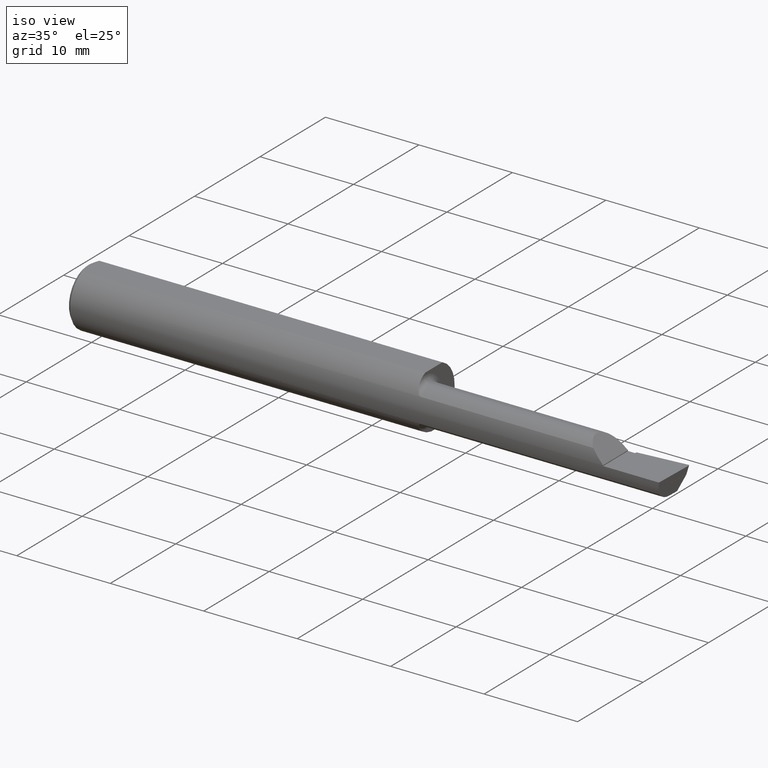
[diagram: clean part render]
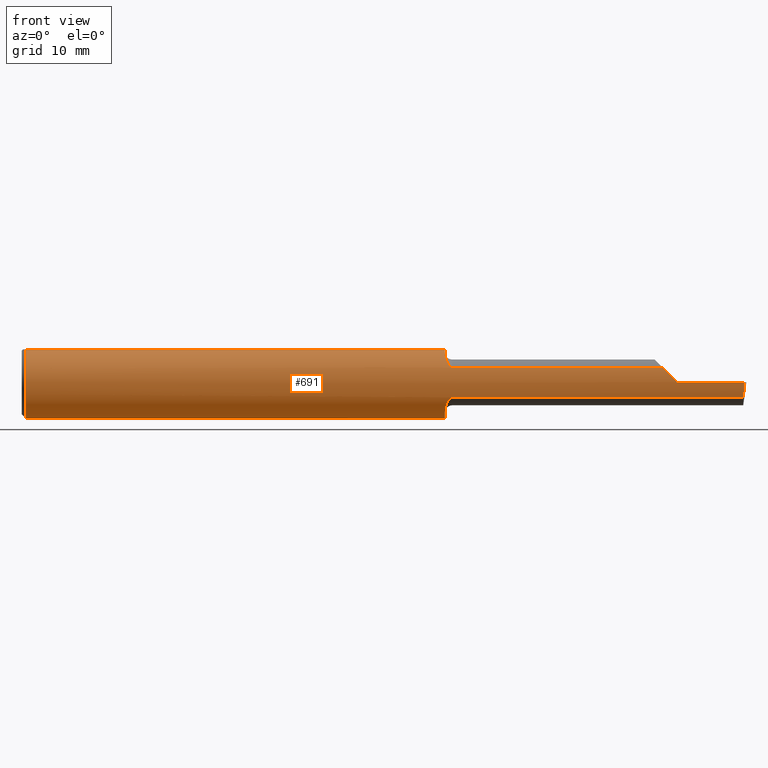
[diagram: tour spotlight — one face highlighted and labeled with its STEP entity id]
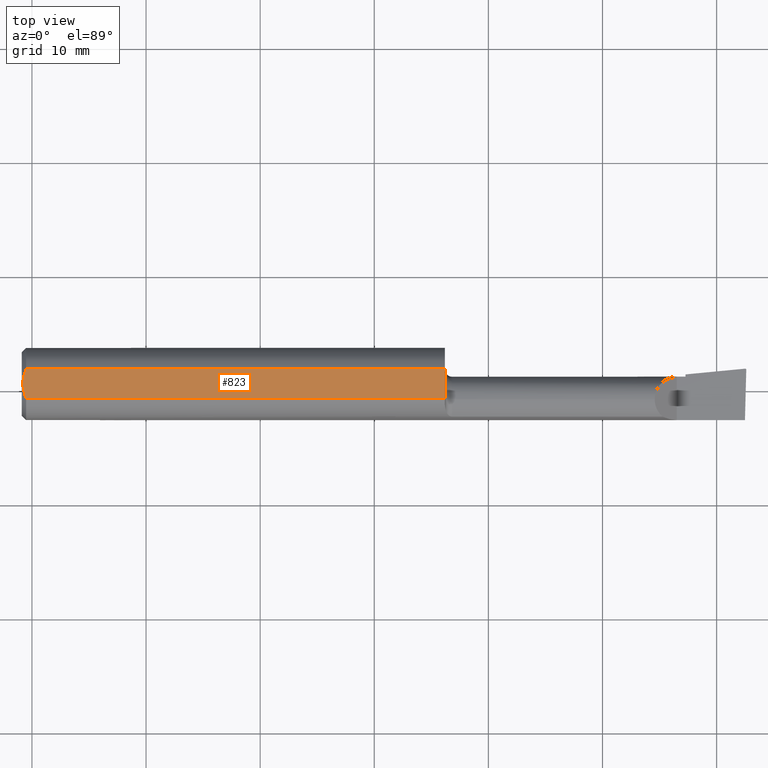
[diagram: tour spotlight — one face highlighted and labeled with its STEP entity id]
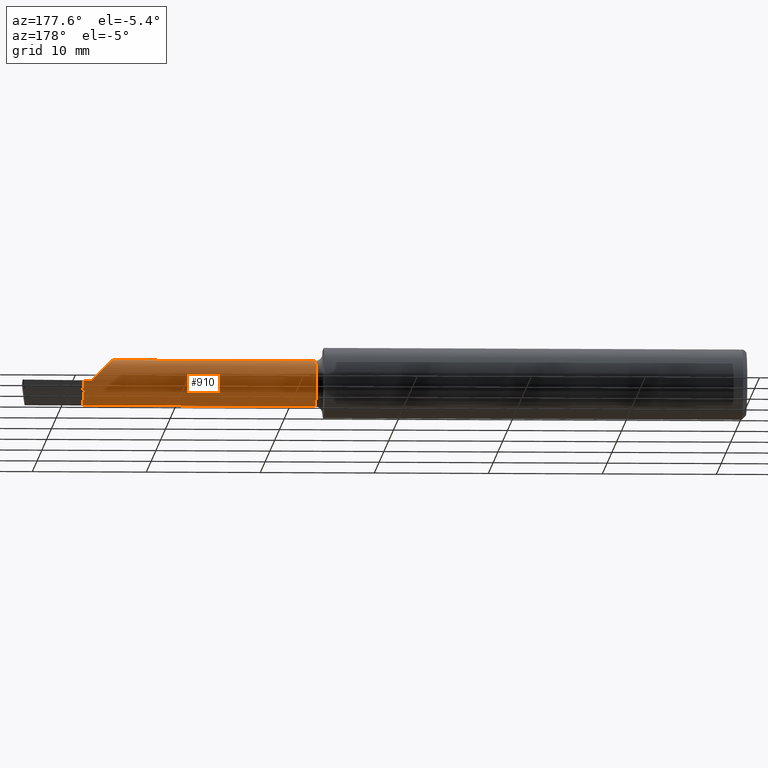
[diagram: tour spotlight — one face highlighted and labeled with its STEP entity id]
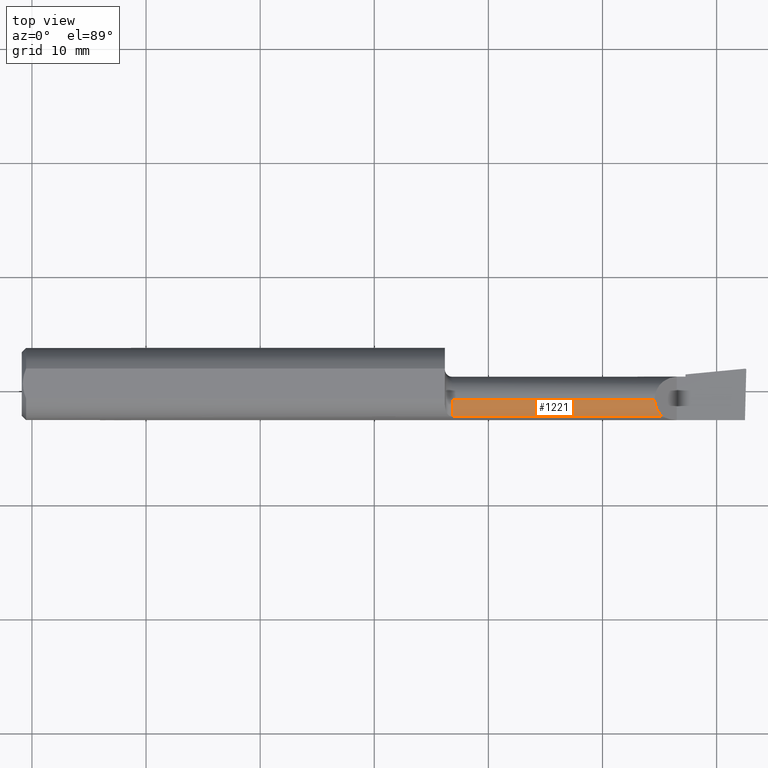
[diagram: tour spotlight — one face highlighted and labeled with its STEP entity id]
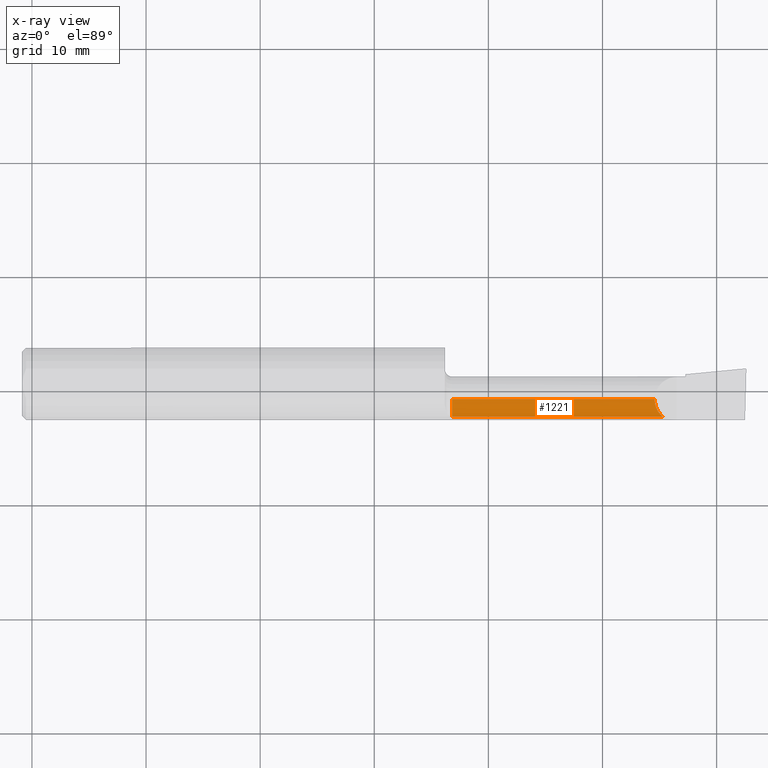
[diagram: x-ray of the same camera — body ghosted, this tour face saturated]
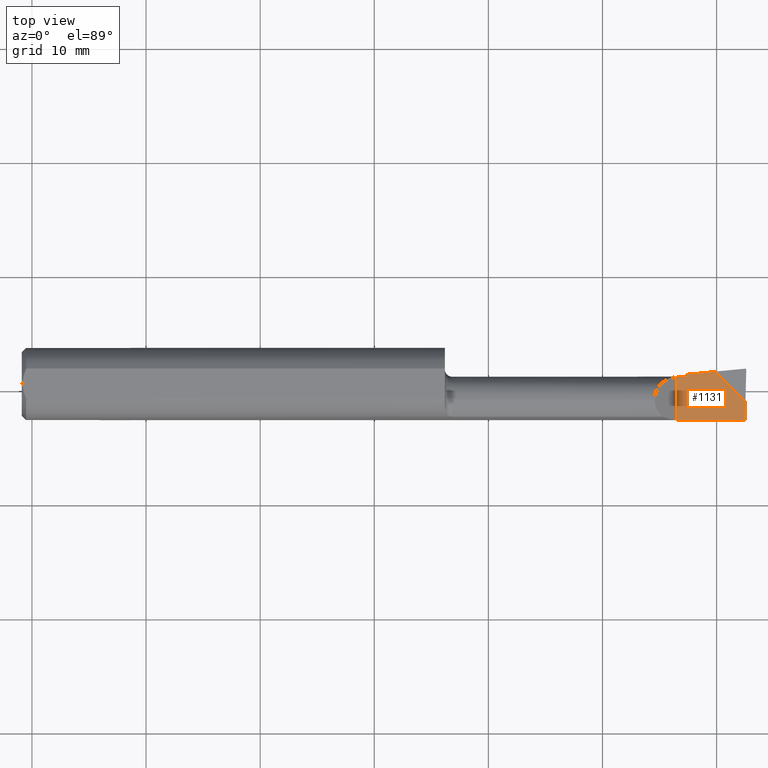
[diagram: tour spotlight — one face highlighted and labeled with its STEP entity id]
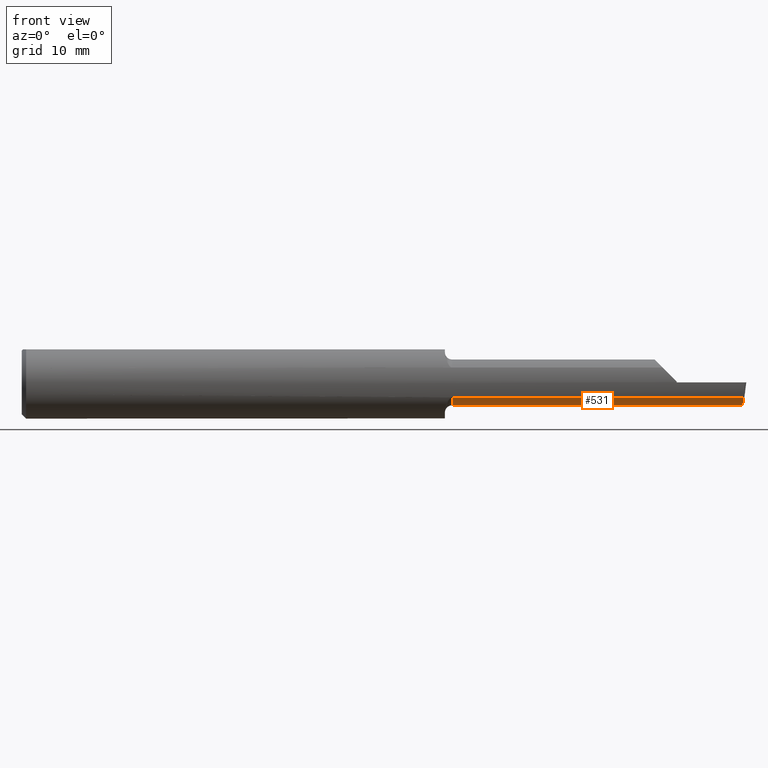
[diagram: tour spotlight — one face highlighted and labeled with its STEP entity id]
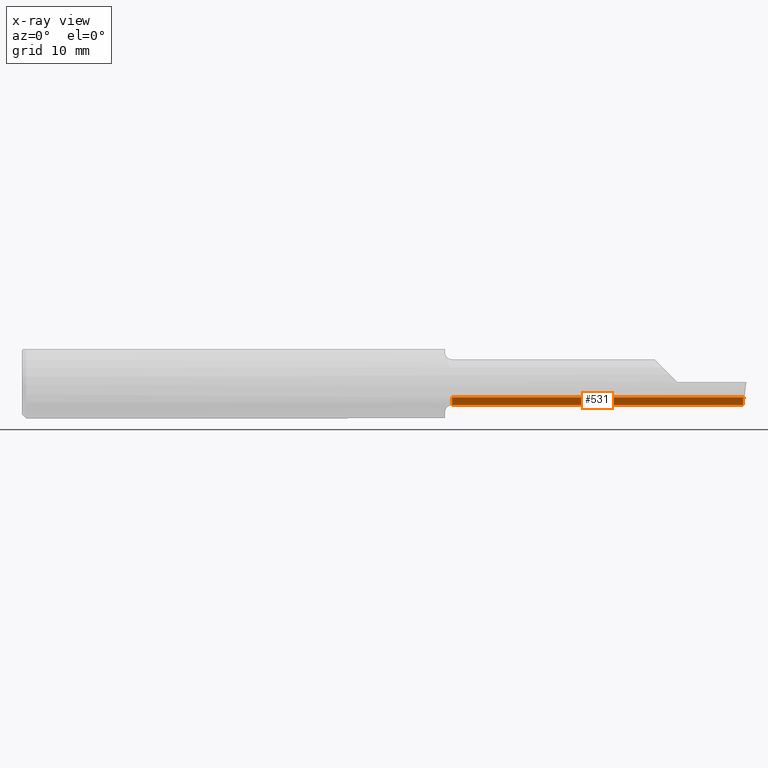
[diagram: x-ray of the same camera — body ghosted, this tour face saturated]
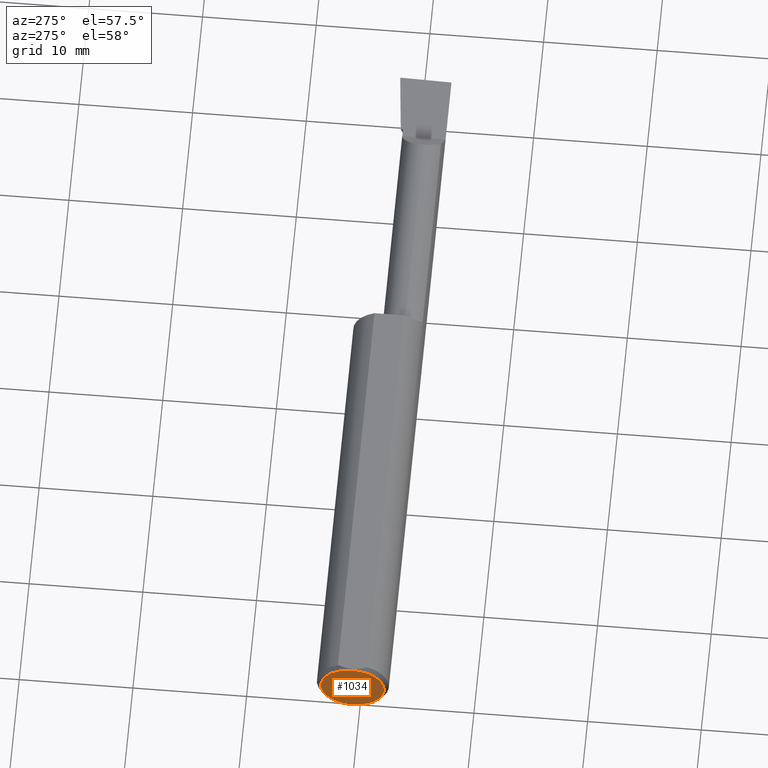
[diagram: tour spotlight — one face highlighted and labeled with its STEP entity id]
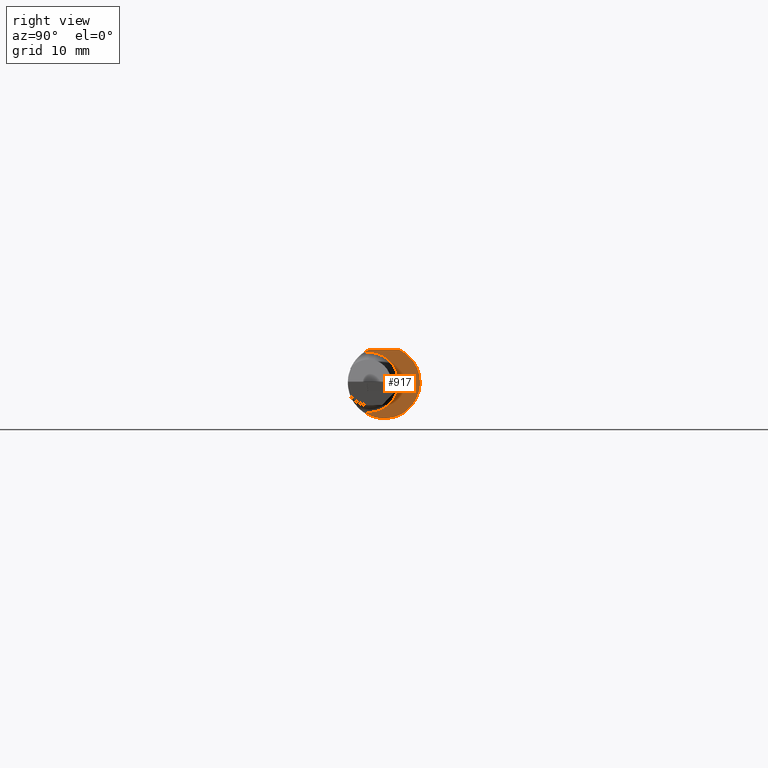
[diagram: tour spotlight — one face highlighted and labeled with its STEP entity id]
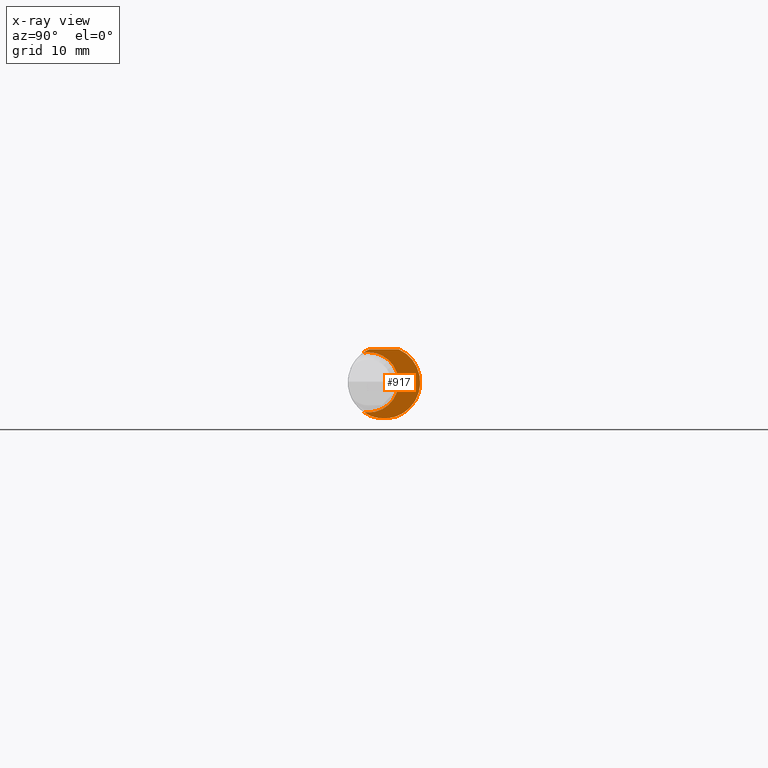
[diagram: x-ray of the same camera — body ghosted, this tour face saturated]
A machine part: a face-by-face anatomy tour. The part has 38 B-rep faces; the first image is the clean iso view, then the 8 largest visible faces are spotlighted one at a time (largest first), each with its STEP entity span.

Face 1 — front view, entity #691. In plain terms, the highlighted cylindrical surface (edge-blend (fillet) strip) has radius 3.1712 mm, axis along (-1, -0, -0).
Definition (entity closure, byte-faithful):
#13 = AXIS2_PLACEMENT_3D ( 'NONE', #1154, #131, #1037 ) ;
#15 = CARTESIAN_POINT ( 'NONE',  ( 1.468829174467128906, -0.1051947416025568738, -0.06747609159119545563 ) ) ;
#22 = CARTESIAN_POINT ( 'NONE',  ( 1.485000000000000098, -0.1137079387186629154, 0.05155605854167669838 ) ) ;
#37 = DIRECTION ( 'NONE',  ( 0.000000000000000000, 0.000000000000000000, -1.000000000000000000 ) ) ;
#39 = VERTEX_POINT ( 'NONE', #1337 ) ;
#55 = ORIENTED_EDGE ( 'NONE', *, *, #803, .F. ) ;
#66 = CARTESIAN_POINT ( 'NONE',  ( 2.260000000000000231, -0.1248174667264161375, 0.002850000000000250770 ) ) ;
#118 = CARTESIAN_POINT ( 'NONE',  ( 2.243124547623006393, -0.1244321437380891265, 0.01972545237699363518 ) ) ;
#124 = CARTESIAN_POINT ( 'NONE',  ( 2.489728331821901453, -0.1137079387186629292, -0.05155605854167671920 ) ) ;
#131 = DIRECTION ( 'NONE',  ( 1.000000000000000000, -0.000000000000000000, 0.000000000000000000 ) ) ;
#136 = EDGE_CURVE ( 'NONE', #1385, #606, #563, .T. ) ;
#148 = B_SPLINE_CURVE_WITH_KNOTS ( 'NONE', 3,
 ( #795, #342, #1140, #789, #1258, #229, #15, #394, #281, #400, #1311, #583, #590, #835 ),
 .UNSPECIFIED., .F., .F.,
 ( 4, 2, 2, 2, 2, 2, 4 ),
 ( 0.000000000000000000, 0.0004746844550168766185, 0.0009493689100337532371, 0.001424053365050629476, 0.001661395592559071878, 0.001780066706313292862, 0.001898737820067514064 ),
 .UNSPECIFIED. ) ;
#150 = ORIENTED_EDGE ( 'NONE', *, *, #881, .F. ) ;
#155 = CARTESIAN_POINT ( 'NONE',  ( 0.01499999999999970281, 0.000000000000000000, 0.000000000000000000 ) ) ;
#178 = CARTESIAN_POINT ( 'NONE',  ( 1.875000000000000000, -0.1137079387186629154, -0.05155605854167669838 ) ) ;
#205 = LINE ( 'NONE', #1329, #1212 ) ;
#210 = CARTESIAN_POINT ( 'NONE',  ( 1.485000000000000098, -0.1137079387186629154, 0.05155605854167669838 ) ) ;
#229 = CARTESIAN_POINT ( 'NONE',  ( 1.466720276352116770, -0.1018883731564565881, -0.07240726755920651181 ) ) ;
#245 = CARTESIAN_POINT ( 'NONE',  ( 1.473207090333531699, -0.1093984659698930689, 0.06022643808600478682 ) ) ;
#248 = CARTESIAN_POINT ( 'NONE',  ( 2.260000000000000231, -0.1248174667264161375, 0.002850000000000250770 ) ) ;
#258 = ORIENTED_EDGE ( 'NONE', *, *, #729, .T. ) ;
#261 = CARTESIAN_POINT ( 'NONE',  ( 0.01499999999999970281, -0.05124158467494929065, 0.1138500000000000068 ) ) ;
#273 = EDGE_CURVE ( 'NONE', #991, #39, #713, .T. ) ;
#277 = ORIENTED_EDGE ( 'NONE', *, *, #1105, .T. ) ;
#281 = CARTESIAN_POINT ( 'NONE',  ( 1.474891557169639711, -0.1106952600441790252, -0.05778930534297101185 ) ) ;
#287 = CARTESIAN_POINT ( 'NONE',  ( 0.01499999999999970281, 0.05124158467494929065, 0.1138500000000000068 ) ) ;
#290 = DIRECTION ( 'NONE',  ( 1.000000000000000000, -0.000000000000000000, -0.000000000000000000 ) ) ;
#291 = VECTOR ( 'NONE', #602, 39.37007874015748143 ) ;
#303 = VECTOR ( 'NONE', #550, 39.37007874015748143 ) ;
#306 = CARTESIAN_POINT ( 'NONE',  ( 0.01499999999999970281, 0.000000000000000000, 0.000000000000000000 ) ) ;
#313 = DIRECTION ( 'NONE',  ( -1.000000000000000000, -0.000000000000000000, -0.000000000000000000 ) ) ;
#319 = CARTESIAN_POINT ( 'NONE',  ( 1.460000000000000187, 0.05124158467494929065, 0.1138500000000000068 ) ) ;
#324 = ORIENTED_EDGE ( 'NONE', *, *, #1445, .T. ) ;
#327 = DIRECTION ( 'NONE',  ( 1.000000000000000000, 0.000000000000000000, 0.000000000000000000 ) ) ;
#342 = CARTESIAN_POINT ( 'NONE',  ( 1.460000000000000187, -0.07641892655109837340, -0.09893232956682049273 ) ) ;
#344 = ORIENTED_EDGE ( 'NONE', *, *, #363, .T. ) ;
#354 = EDGE_CURVE ( 'NONE', #880, #579, #1058, .T. ) ;
#363 = EDGE_CURVE ( 'NONE', #1129, #558, #1463, .T. ) ;
#366 = AXIS2_PLACEMENT_3D ( 'NONE', #1230, #313, #535 ) ;
#367 = ORIENTED_EDGE ( 'NONE', *, *, #1115, .T. ) ;
#394 = CARTESIAN_POINT ( 'NONE',  ( 1.473222967173717368, -0.1094132292718230787, -0.06020071664543997364 ) ) ;
#396 = CARTESIAN_POINT ( 'NONE',  ( 0.01499999999999970281, 0.000000000000000000, -0.1248500000000000026 ) ) ;
#400 = CARTESIAN_POINT ( 'NONE',  ( 1.477994774632203079, -0.1122674110454139340, -0.05463452566123337684 ) ) ;
#403 = CARTESIAN_POINT ( 'NONE',  ( 1.460000000000000187, -0.05124158467494929065, 0.1138500000000000068 ) ) ;
#424 = CIRCLE ( 'NONE', #1454, 0.1248500000000000026 ) ;
#436 = CARTESIAN_POINT ( 'NONE',  ( 1.460432183272953655, -0.08132552481649778231, 0.09493149319044985601 ) ) ;
#439 =( BOUNDED_CURVE ( )  B_SPLINE_CURVE ( 3, ( #248, #118, #1377, #686 ),
 .UNSPECIFIED., .F., .T. ) 
 B_SPLINE_CURVE_WITH_KNOTS ( ( 4, 4 ),
 ( 4.735218356241675863, 5.138073161991934867 ),
 .UNSPECIFIED. ) 
 CURVE ( )  GEOMETRIC_REPRESENTATION_ITEM ( )  RATIONAL_B_SPLINE_CURVE ( ( 1.000000000000000000, 0.9865213322208085112, 0.9865213322208085112, 1.000000000000000000 ) ) 
 REPRESENTATION_ITEM ( '' )  );
#519 = EDGE_LOOP ( 'NONE', ( #150, #344, #277, #837, #1098, #915, #258, #55, #1452, #367, #871, #764, #1356, #324 ) ) ;
#522 = CARTESIAN_POINT ( 'NONE',  ( 2.495308749928165426, -0.1248500000000000026, 0.000000000000000000 ) ) ;
#523 = DIRECTION ( 'NONE',  ( -1.000000000000000000, -0.000000000000000000, -0.000000000000000000 ) ) ;
#535 = DIRECTION ( 'NONE',  ( 0.000000000000000000, 0.000000000000000000, 1.000000000000000000 ) ) ;
#541 = DIRECTION ( 'NONE',  ( 1.000000000000000000, -0.000000000000000000, -0.000000000000000000 ) ) ;
#550 = DIRECTION ( 'NONE',  ( 1.000000000000000000, 0.000000000000000000, 0.000000000000000000 ) ) ;
#558 = VERTEX_POINT ( 'NONE', #522 ) ;
#563 = LINE ( 'NONE', #1006, #303 ) ;
#567 = AXIS2_PLACEMENT_3D ( 'NONE', #893, #327, #974 ) ;
#572 = EDGE_CURVE ( 'NONE', #1033, #880, #424, .T. ) ;
#579 = VERTEX_POINT ( 'NONE', #319 ) ;
#583 = CARTESIAN_POINT ( 'NONE',  ( 1.481841195498450281, -0.1134700705846414664, -0.05208464249868662022 ) ) ;
#584 = CARTESIAN_POINT ( 'NONE',  ( 2.500000000000000000, 0.05124158467494929065, 0.1138500000000000068 ) ) ;
#590 = CARTESIAN_POINT ( 'NONE',  ( 1.483384674804965941, -0.1137079387186629986, -0.05155605854167662899 ) ) ;
#594 = DIRECTION ( 'NONE',  ( 1.000000000000000000, 0.000000000000000000, 0.000000000000000000 ) ) ;
#602 = DIRECTION ( 'NONE',  ( -1.000000000000000000, -0.000000000000000000, -0.000000000000000000 ) ) ;
#606 = VERTEX_POINT ( 'NONE', #1133 ) ;
#609 = DIRECTION ( 'NONE',  ( 0.000000000000000000, 0.000000000000000000, -1.000000000000000000 ) ) ;
#653 = CARTESIAN_POINT ( 'NONE',  ( 1.478004996570724261, -0.1122724996918369328, 0.05462428567343535768 ) ) ;
#658 = CARTESIAN_POINT ( 'NONE',  ( 1.460000000000000187, -0.07122883008356545309, 0.1025376821706369818 ) ) ;
#659 = CARTESIAN_POINT ( 'NONE',  ( 1.485000000000000098, -0.1137079387186629154, -0.05155605854167669838 ) ) ;
#668 = B_SPLINE_CURVE_WITH_KNOTS ( 'NONE', 3,
 ( #210, #1465, #788, #898, #653, #1119, #245, #1457, #1358, #774, #883, #436, #1364, #658 ),
 .UNSPECIFIED., .F., .F.,
 ( 4, 2, 2, 2, 2, 2, 4 ),
 ( 0.000000000000000000, 0.0001204673166543596992, 0.0002409346333087193984, 0.0004818692666174396642, 0.0009637385332348904956, 0.001445607799852341273, 0.001927477066469792050 ),
 .UNSPECIFIED. ) ;
#680 = CARTESIAN_POINT ( 'NONE',  ( 2.491386376233787114, -0.1210792537318630541, -0.03529847292505416956 ) ) ;
#686 = CARTESIAN_POINT ( 'NONE',  ( 2.211293941458323697, -0.1137079387186630403, 0.05155605854167649715 ) ) ;
#691 = ADVANCED_FACE ( 'NONE', ( #874 ), #768, .T. ) ;
#713 = CIRCLE ( 'NONE', #13, 0.1248500000000000026 ) ;
#729 = EDGE_CURVE ( 'NONE', #1385, #1413, #668, .T. ) ;
#732 = CARTESIAN_POINT ( 'NONE',  ( 1.460000000000000187, 0.000000000000000000, 0.000000000000000000 ) ) ;
#747 = CIRCLE ( 'NONE', #1327, 0.1248500000000000026 ) ;
#764 = ORIENTED_EDGE ( 'NONE', *, *, #354, .T. ) ;
#768 = CYLINDRICAL_SURFACE ( 'NONE', #366, 0.1248500000000000026 ) ;
#774 = CARTESIAN_POINT ( 'NONE',  ( 1.463322063381566451, -0.09442429944196303881, 0.08190292949107198794 ) ) ;
#788 = CARTESIAN_POINT ( 'NONE',  ( 1.481851412320271288, -0.1134707676420270844, 0.05208289852772936268 ) ) ;
#789 = CARTESIAN_POINT ( 'NONE',  ( 1.462075972147772074, -0.09022855039435347113, -0.08651295921337842643 ) ) ;
#795 = CARTESIAN_POINT ( 'NONE',  ( 1.460000000000000187, -0.07122883008356545309, -0.1025376821706369679 ) ) ;
#803 = EDGE_CURVE ( 'NONE', #1161, #1413, #926, .T. ) ;
#835 = CARTESIAN_POINT ( 'NONE',  ( 1.485000000000000098, -0.1137079387186629154, -0.05155605854167669838 ) ) ;
#837 = ORIENTED_EDGE ( 'NONE', *, *, #273, .F. ) ;
#863 = VERTEX_POINT ( 'NONE', #261 ) ;
#871 = ORIENTED_EDGE ( 'NONE', *, *, #572, .T. ) ;
#874 = FACE_OUTER_BOUND ( 'NONE', #519, .T. ) ;
#880 = VERTEX_POINT ( 'NONE', #287 ) ;
#881 = EDGE_CURVE ( 'NONE', #1129, #1228, #1283, .T. ) ;
#883 = CARTESIAN_POINT ( 'NONE',  ( 1.462097932358489727, -0.09031588916230269548, 0.08642262175420212245 ) ) ;
#893 = CARTESIAN_POINT ( 'NONE',  ( 1.460000000000000187, 0.000000000000000000, 0.000000000000000000 ) ) ;
#894 = VECTOR ( 'NONE', #1392, 39.37007874015748143 ) ;
#898 = CARTESIAN_POINT ( 'NONE',  ( 1.479178174055183481, -0.1127518981013768823, 0.05362138475326223147 ) ) ;
#915 = ORIENTED_EDGE ( 'NONE', *, *, #136, .F. ) ;
#926 = CIRCLE ( 'NONE', #1382, 0.1248500000000000026 ) ;
#949 = CARTESIAN_POINT ( 'NONE',  ( 2.495308749928165426, -0.1248500000000000026, 0.000000000000000000 ) ) ;
#974 = DIRECTION ( 'NONE',  ( 0.000000000000000000, 0.000000000000000000, -1.000000000000000000 ) ) ;
#991 = VERTEX_POINT ( 'NONE', #66 ) ;
#1006 = CARTESIAN_POINT ( 'NONE',  ( 1.875000000000000000, -0.1137079387186629154, 0.05155605854167669838 ) ) ;
#1019 = DIRECTION ( 'NONE',  ( 0.000000000000000000, 0.000000000000000000, -1.000000000000000000 ) ) ;
#1031 = VECTOR ( 'NONE', #1277, 39.37007874015748143 ) ;
#1033 = VERTEX_POINT ( 'NONE', #396 ) ;
#1037 = DIRECTION ( 'NONE',  ( 0.000000000000000000, 0.000000000000000000, -1.000000000000000000 ) ) ;
#1058 = LINE ( 'NONE', #584, #1031 ) ;
#1088 = LINE ( 'NONE', #1179, #894 ) ;
#1098 = ORIENTED_EDGE ( 'NONE', *, *, #1355, .T. ) ;
#1105 = EDGE_CURVE ( 'NONE', #558, #39, #1088, .T. ) ;
#1115 = EDGE_CURVE ( 'NONE', #863, #1033, #747, .T. ) ;
#1119 = CARTESIAN_POINT ( 'NONE',  ( 1.474874683682054988, -0.1106868914269828058, 0.05780615586404040662 ) ) ;
#1127 = CARTESIAN_POINT ( 'NONE',  ( 1.460000000000000187, -0.07122883008356545309, -0.1025376821706369679 ) ) ;
#1129 = VERTEX_POINT ( 'NONE', #1287 ) ;
#1133 = CARTESIAN_POINT ( 'NONE',  ( 2.211293941458323697, -0.1137079387186630403, 0.05155605854167649715 ) ) ;
#1140 = CARTESIAN_POINT ( 'NONE',  ( 1.460423630387103877, -0.08124759910979215127, -0.09499742658102147685 ) ) ;
#1147 = CARTESIAN_POINT ( 'NONE',  ( 2.493274926315995010, -0.1248500000000000582, -0.01785064074776142665 ) ) ;
#1154 = CARTESIAN_POINT ( 'NONE',  ( 2.260000000000000231, 0.000000000000000000, 0.000000000000000000 ) ) ;
#1161 = VERTEX_POINT ( 'NONE', #403 ) ;
#1179 = CARTESIAN_POINT ( 'NONE',  ( 2.500000000000000000, -0.1248499999999999888, -3.414809992080329023E-17 ) ) ;
#1212 = VECTOR ( 'NONE', #523, 39.37007874015748143 ) ;
#1228 = VERTEX_POINT ( 'NONE', #659 ) ;
#1230 = CARTESIAN_POINT ( 'NONE',  ( 2.500000000000000000, 0.000000000000000000, 0.000000000000000000 ) ) ;
#1242 = EDGE_CURVE ( 'NONE', #1161, #863, #205, .T. ) ;
#1248 = VERTEX_POINT ( 'NONE', #1127 ) ;
#1251 = CARTESIAN_POINT ( 'NONE',  ( 1.460000000000000187, -0.07122883008356545309, 0.1025376821706369818 ) ) ;
#1258 = CARTESIAN_POINT ( 'NONE',  ( 1.463319739580840384, -0.09441777840403026145, -0.08191053717994592476 ) ) ;
#1277 = DIRECTION ( 'NONE',  ( 1.000000000000000000, 0.000000000000000000, 0.000000000000000000 ) ) ;
#1283 = LINE ( 'NONE', #178, #291 ) ;
#1287 = CARTESIAN_POINT ( 'NONE',  ( 2.489728331821901453, -0.1137079387186629292, -0.05155605854167671920 ) ) ;
#1311 = CARTESIAN_POINT ( 'NONE',  ( 1.479139446731721819, -0.1127393959439296905, -0.05364788444009101209 ) ) ;
#1314 = EDGE_CURVE ( 'NONE', #1248, #579, #1468, .T. ) ;
#1327 = AXIS2_PLACEMENT_3D ( 'NONE', #155, #290, #37 ) ;
#1329 = CARTESIAN_POINT ( 'NONE',  ( 2.500000000000000000, -0.05124158467494929065, 0.1138500000000000068 ) ) ;
#1337 = CARTESIAN_POINT ( 'NONE',  ( 2.260000000000000231, -0.1248500000000000026, -3.414809992080329023E-17 ) ) ;
#1355 = EDGE_CURVE ( 'NONE', #991, #606, #439, .T. ) ;
#1356 = ORIENTED_EDGE ( 'NONE', *, *, #1314, .F. ) ;
#1358 = CARTESIAN_POINT ( 'NONE',  ( 1.466722897001411896, -0.1018927124558844932, 0.07240105891979375929 ) ) ;
#1364 = CARTESIAN_POINT ( 'NONE',  ( 1.460000000000000187, -0.07641459200272590624, 0.09893534060435293931 ) ) ;
#1377 = CARTESIAN_POINT ( 'NONE',  ( 2.226667373999931421, -0.1206783718918706672, 0.03618262600006896118 ) ) ;
#1382 = AXIS2_PLACEMENT_3D ( 'NONE', #732, #594, #609 ) ;
#1385 = VERTEX_POINT ( 'NONE', #22 ) ;
#1392 = DIRECTION ( 'NONE',  ( -1.000000000000000000, -0.000000000000000000, -0.000000000000000000 ) ) ;
#1413 = VERTEX_POINT ( 'NONE', #1251 ) ;
#1445 = EDGE_CURVE ( 'NONE', #1248, #1228, #148, .T. ) ;
#1452 = ORIENTED_EDGE ( 'NONE', *, *, #1242, .T. ) ;
#1454 = AXIS2_PLACEMENT_3D ( 'NONE', #306, #541, #1019 ) ;
#1457 = CARTESIAN_POINT ( 'NONE',  ( 1.468851736067403824, -0.1052154413536967453, 0.06743987103427503960 ) ) ;
#1463 =( BOUNDED_CURVE ( )  B_SPLINE_CURVE ( 3, ( #124, #680, #1147, #949 ),
 .UNSPECIFIED., .F., .F. ) 
 B_SPLINE_CURVE_WITH_KNOTS ( ( 4, 4 ),
 ( 0.9177925002943650989, 1.343476681901613068 ),
 .UNSPECIFIED. ) 
 CURVE ( )  GEOMETRIC_REPRESENTATION_ITEM ( )  RATIONAL_B_SPLINE_CURVE ( ( 1.000000000000000000, 0.9849563356983244145, 0.9849563356983244145, 1.000000000000000000 ) ) 
 REPRESENTATION_ITEM ( '' )  );
#1465 = CARTESIAN_POINT ( 'NONE',  ( 1.483387820938879553, -0.1137079387186629154, 0.05155605854167671920 ) ) ;
#1468 = CIRCLE ( 'NONE', #567, 0.1248500000000000026 ) ;

Face 2 — top view, entity #823. In plain terms, the highlighted planar face has unit normal (0, 0, -1).
Definition (entity closure, byte-faithful):
#1 = CARTESIAN_POINT ( 'NONE',  ( 0.003999999999982595603, -1.276290005483319770E-15, 0.1138500000000000068 ) ) ;
#74 = CARTESIAN_POINT ( 'NONE',  ( 0.01167347033176714677, -0.04313650299737419730, 0.1138500000000000068 ) ) ;
#92 = CARTESIAN_POINT ( 'NONE',  ( 0.01167190377471842913, 0.04313268608482605931, 0.1138500000000000068 ) ) ;
#99 = CARTESIAN_POINT ( 'NONE',  ( 0.003999999999982595603, -1.276290005483319770E-15, 0.1138500000000000068 ) ) ;
#115 = ORIENTED_EDGE ( 'NONE', *, *, #1242, .F. ) ;
#196 = CARTESIAN_POINT ( 'NONE',  ( 0.008925039223039969369, -0.03485448893270375742, 0.1138499999999999790 ) ) ;
#205 = LINE ( 'NONE', #1329, #1212 ) ;
#226 = EDGE_CURVE ( 'NONE', #880, #1422, #252, .T. ) ;
#252 = B_SPLINE_CURVE_WITH_KNOTS ( 'NONE', 3,
 ( #796, #92, #537, #886, #1120, #99 ),
 .UNSPECIFIED., .F., .F.,
 ( 4, 2, 4 ),
 ( 0.001209797888329799129, 0.001876628042345587083, 0.002543458196361374820 ),
 .UNSPECIFIED. ) ;
#261 = CARTESIAN_POINT ( 'NONE',  ( 0.01499999999999970281, -0.05124158467494929065, 0.1138500000000000068 ) ) ;
#268 = EDGE_LOOP ( 'NONE', ( #496, #634, #750, #707, #115 ) ) ;
#287 = CARTESIAN_POINT ( 'NONE',  ( 0.01499999999999970281, 0.05124158467494929065, 0.1138500000000000068 ) ) ;
#319 = CARTESIAN_POINT ( 'NONE',  ( 1.460000000000000187, 0.05124158467494929065, 0.1138500000000000068 ) ) ;
#354 = EDGE_CURVE ( 'NONE', #880, #579, #1058, .T. ) ;
#403 = CARTESIAN_POINT ( 'NONE',  ( 1.460000000000000187, -0.05124158467494929065, 0.1138500000000000068 ) ) ;
#411 = LINE ( 'NONE', #864, #431 ) ;
#431 = VECTOR ( 'NONE', #513, 39.37007874015748143 ) ;
#496 = ORIENTED_EDGE ( 'NONE', *, *, #992, .F. ) ;
#513 = DIRECTION ( 'NONE',  ( 0.000000000000000000, -1.000000000000000000, 0.000000000000000000 ) ) ;
#521 = CARTESIAN_POINT ( 'NONE',  ( 0.003999999999982595603, -1.276290005483319770E-15, 0.1138500000000000068 ) ) ;
#523 = DIRECTION ( 'NONE',  ( -1.000000000000000000, -0.000000000000000000, -0.000000000000000000 ) ) ;
#533 = B_SPLINE_CURVE_WITH_KNOTS ( 'NONE', 3,
 ( #521, #971, #1091, #196, #74, #636 ),
 .UNSPECIFIED., .F., .F.,
 ( 4, 2, 4 ),
 ( 0.002543458196361374820, 0.003213918189955199643, 0.003884378183549024033 ),
 .UNSPECIFIED. ) ;
#537 = CARTESIAN_POINT ( 'NONE',  ( 0.008866562462787443491, 0.03466860267591458100, 0.1138500000000000206 ) ) ;
#579 = VERTEX_POINT ( 'NONE', #319 ) ;
#584 = CARTESIAN_POINT ( 'NONE',  ( 2.500000000000000000, 0.05124158467494929065, 0.1138500000000000068 ) ) ;
#634 = ORIENTED_EDGE ( 'NONE', *, *, #354, .F. ) ;
#636 = CARTESIAN_POINT ( 'NONE',  ( 0.01499999999999970281, -0.05124158467494929065, 0.1138500000000000068 ) ) ;
#707 = ORIENTED_EDGE ( 'NONE', *, *, #954, .T. ) ;
#715 = FACE_OUTER_BOUND ( 'NONE', #268, .T. ) ;
#750 = ORIENTED_EDGE ( 'NONE', *, *, #226, .T. ) ;
#796 = CARTESIAN_POINT ( 'NONE',  ( 0.01499999999999970281, 0.05124158467494929065, 0.1138500000000000068 ) ) ;
#823 = ADVANCED_FACE ( 'NONE', ( #715 ), #937, .F. ) ;
#825 = CARTESIAN_POINT ( 'NONE',  ( 0.000000000000000000, 0.1000000000000000056, 0.1138500000000000068 ) ) ;
#856 = AXIS2_PLACEMENT_3D ( 'NONE', #825, #1290, #1191 ) ;
#863 = VERTEX_POINT ( 'NONE', #261 ) ;
#864 = CARTESIAN_POINT ( 'NONE',  ( 1.460000000000000187, 0.1000000000000000056, 0.1138500000000000068 ) ) ;
#880 = VERTEX_POINT ( 'NONE', #287 ) ;
#886 = CARTESIAN_POINT ( 'NONE',  ( 0.005030588787081555213, 0.01748826716933453429, 0.1138499999999999790 ) ) ;
#937 = PLANE ( 'NONE',  #856 ) ;
#954 = EDGE_CURVE ( 'NONE', #1422, #863, #533, .T. ) ;
#971 = CARTESIAN_POINT ( 'NONE',  ( 0.004000000000000226465, -0.008848600531297693209, 0.1138500000000000068 ) ) ;
#992 = EDGE_CURVE ( 'NONE', #579, #1161, #411, .T. ) ;
#1031 = VECTOR ( 'NONE', #1277, 39.37007874015748143 ) ;
#1058 = LINE ( 'NONE', #584, #1031 ) ;
#1091 = CARTESIAN_POINT ( 'NONE',  ( 0.005080301127456089694, -0.01778481300359938122, 0.1138500000000000206 ) ) ;
#1120 = CARTESIAN_POINT ( 'NONE',  ( 0.003999999999999732936, 0.008800694614867356214, 0.1138500000000000068 ) ) ;
#1161 = VERTEX_POINT ( 'NONE', #403 ) ;
#1191 = DIRECTION ( 'NONE',  ( -1.000000000000000000, 0.000000000000000000, 0.000000000000000000 ) ) ;
#1212 = VECTOR ( 'NONE', #523, 39.37007874015748143 ) ;
#1242 = EDGE_CURVE ( 'NONE', #1161, #863, #205, .T. ) ;
#1277 = DIRECTION ( 'NONE',  ( 1.000000000000000000, 0.000000000000000000, 0.000000000000000000 ) ) ;
#1290 = DIRECTION ( 'NONE',  ( -0.000000000000000000, 0.000000000000000000, -1.000000000000000000 ) ) ;
#1329 = CARTESIAN_POINT ( 'NONE',  ( 2.500000000000000000, -0.05124158467494929065, 0.1138500000000000068 ) ) ;
#1422 = VERTEX_POINT ( 'NONE', #1 ) ;

Face 3 — auxiliary view, entity #910. In plain terms, the highlighted cylindrical surface (edge-blend (fillet) strip) has radius 2.0066 mm, axis along (-1, -0, -0).
Definition (entity closure, byte-faithful):
#11 = ORIENTED_EDGE ( 'NONE', *, *, #743, .F. ) ;
#16 = CARTESIAN_POINT ( 'NONE',  ( 1.460000000000000187, 0.02514999999999997099, -3.414809992080329023E-17 ) ) ;
#44 = VERTEX_POINT ( 'NONE', #315 ) ;
#83 = CARTESIAN_POINT ( 'NONE',  ( 1.485000000000000098, -0.05385000000000000897, 0.000000000000000000 ) ) ;
#84 = VECTOR ( 'NONE', #920, 39.37007874015748143 ) ;
#89 =( BOUNDED_CURVE ( )  B_SPLINE_CURVE ( 3, ( #1296, #815, #1173, #399 ),
 .UNSPECIFIED., .F., .T. ) 
 B_SPLINE_CURVE_WITH_KNOTS ( ( 4, 4 ),
 ( 4.748472759657429876, 6.283185307179586232 ),
 .UNSPECIFIED. ) 
 CURVE ( )  GEOMETRIC_REPRESENTATION_ITEM ( )  RATIONAL_B_SPLINE_CURVE ( ( 1.000000000000000000, 0.8131656997482654692, 0.8131656997482654692, 1.000000000000000000 ) ) 
 REPRESENTATION_ITEM ( '' )  );
#95 = AXIS2_PLACEMENT_3D ( 'NONE', #83, #1196, #1321 ) ;
#108 = VECTOR ( 'NONE', #222, 39.37007874015748143 ) ;
#112 = CIRCLE ( 'NONE', #417, 0.07900000000000000078 ) ;
#128 = EDGE_CURVE ( 'NONE', #1190, #225, #112, .T. ) ;
#153 = CARTESIAN_POINT ( 'NONE',  ( 2.285716982925383611, 0.01815694157993225435, -0.03249615922388704448 ) ) ;
#222 = DIRECTION ( 'NONE',  ( -1.000000000000000000, -0.000000000000000000, -0.000000000000000000 ) ) ;
#223 = CARTESIAN_POINT ( 'NONE',  ( 2.288594910763313006, 0.01791252108964369247, -0.03303373654662771636 ) ) ;
#225 = VERTEX_POINT ( 'NONE', #997 ) ;
#234 = LINE ( 'NONE', #568, #1008 ) ;
#239 = CARTESIAN_POINT ( 'NONE',  ( 2.287167223447292841, 0.01803548479585102837, -0.03276529046169183307 ) ) ;
#279 = DIRECTION ( 'NONE',  ( -1.000000000000000000, -0.000000000000000000, -0.000000000000000000 ) ) ;
#285 = EDGE_CURVE ( 'NONE', #1089, #1190, #1043, .T. ) ;
#300 = CIRCLE ( 'NONE', #547, 0.07900000000000000078 ) ;
#315 = CARTESIAN_POINT ( 'NONE',  ( 2.260000000000000231, 0.02509857503463882797, 0.002850000000000285031 ) ) ;
#333 = LINE ( 'NONE', #1250, #108 ) ;
#336 = CARTESIAN_POINT ( 'NONE',  ( 2.290000000000000036, -0.05385000000000000897, 0.000000000000000000 ) ) ;
#384 = EDGE_CURVE ( 'NONE', #962, #410, #1109, .T. ) ;
#387 = CARTESIAN_POINT ( 'NONE',  ( 2.260000000000000231, 0.02514999999999998487, -3.414809992080329023E-17 ) ) ;
#388 = VERTEX_POINT ( 'NONE', #597 ) ;
#399 = CARTESIAN_POINT ( 'NONE',  ( 2.183849999999999625, -0.05385000000000000897, 0.07900000000000000078 ) ) ;
#410 = VERTEX_POINT ( 'NONE', #1409 ) ;
#417 = AXIS2_PLACEMENT_3D ( 'NONE', #336, #1373, #790 ) ;
#440 = CARTESIAN_POINT ( 'NONE',  ( 2.260000000000000231, -0.05385000000000000897, 0.000000000000000000 ) ) ;
#446 = CARTESIAN_POINT ( 'NONE',  ( 2.289500683005420978, -0.01848753194819709178, -0.07064346111202184086 ) ) ;
#478 = EDGE_CURVE ( 'NONE', #1302, #388, #876, .T. ) ;
#503 = VERTEX_POINT ( 'NONE', #1426 ) ;
#542 = CARTESIAN_POINT ( 'NONE',  ( 2.183849999999999625, -0.05385000000000000897, 0.07900000000000000078 ) ) ;
#547 = AXIS2_PLACEMENT_3D ( 'NONE', #1344, #1466, #988 ) ;
#556 = CARTESIAN_POINT ( 'NONE',  ( 2.290000000000000036, 0.01778805432616575866, -0.03330148904120239922 ) ) ;
#568 = CARTESIAN_POINT ( 'NONE',  ( 1.460000000000000187, -0.05385000000000000203, -0.07900000000000000078 ) ) ;
#574 = CARTESIAN_POINT ( 'NONE',  ( 2.285716982925383611, 0.01815694157993225435, -0.03249615922388704448 ) ) ;
#593 = ORIENTED_EDGE ( 'NONE', *, *, #128, .T. ) ;
#597 = CARTESIAN_POINT ( 'NONE',  ( 1.485000000000000098, -0.05385000000000000897, 0.07900000000000000078 ) ) ;
#642 = CARTESIAN_POINT ( 'NONE',  ( 2.290000000000000036, 0.02514999999999998487, -3.414809992080329023E-17 ) ) ;
#654 = CARTESIAN_POINT ( 'NONE',  ( 1.485000000000000098, -0.05385000000000000203, -0.07900000000000000078 ) ) ;
#665 = CARTESIAN_POINT ( 'NONE',  ( 2.290000000000000036, -0.01839387631621009628, -0.07059648215966424223 ) ) ;
#695 = CARTESIAN_POINT ( 'NONE',  ( 2.289750697494797649, -0.01844069244940091737, -0.07061999492627854536 ) ) ;
#708 = FACE_OUTER_BOUND ( 'NONE', #1227, .T. ) ;
#721 = ORIENTED_EDGE ( 'NONE', *, *, #771, .F. ) ;
#733 = AXIS2_PLACEMENT_3D ( 'NONE', #944, #279, #1387 ) ;
#742 = CARTESIAN_POINT ( 'NONE',  ( 2.289249956779253470, -0.01853439476625177995, -0.07066688069367470237 ) ) ;
#743 = EDGE_CURVE ( 'NONE', #1181, #388, #333, .T. ) ;
#760 = ORIENTED_EDGE ( 'NONE', *, *, #1437, .T. ) ;
#771 = EDGE_CURVE ( 'NONE', #44, #1181, #89, .T. ) ;
#790 = DIRECTION ( 'NONE',  ( 0.000000000000000000, 0.000000000000000000, 1.000000000000000000 ) ) ;
#804 = ORIENTED_EDGE ( 'NONE', *, *, #285, .T. ) ;
#815 = CARTESIAN_POINT ( 'NONE',  ( 2.215065450112063683, 0.02347646257568132902, 0.04778454988793640751 ) ) ;
#819 = CARTESIAN_POINT ( 'NONE',  ( 2.288088153795166946, -0.002114508615796646500, -0.06246108171711869939 ) ) ;
#838 = ORIENTED_EDGE ( 'NONE', *, *, #1416, .F. ) ;
#843 =( BOUNDED_CURVE ( )  B_SPLINE_CURVE ( 3, ( #913, #695, #446, #1146 ),
 .UNSPECIFIED., .F., .T. ) 
 B_SPLINE_CURVE_WITH_KNOTS ( ( 4, 4 ),
 ( 3.476702986424078823, 3.478692439327601527 ),
 .UNSPECIFIED. ) 
 CURVE ( )  GEOMETRIC_REPRESENTATION_ITEM ( )  RATIONAL_B_SPLINE_CURVE ( ( 1.000000000000000000, 0.9999996701731224125, 0.9999996701731224125, 1.000000000000000000 ) ) 
 REPRESENTATION_ITEM ( '' )  );
#868 = DIRECTION ( 'NONE',  ( 1.000000000000000000, -0.000000000000000000, 0.000000000000000000 ) ) ;
#876 = CIRCLE ( 'NONE', #95, 0.07900000000000000078 ) ;
#910 = ADVANCED_FACE ( 'NONE', ( #708 ), #1046, .T. ) ;
#913 = CARTESIAN_POINT ( 'NONE',  ( 2.290000000000000036, -0.01839387631621009628, -0.07059648215966424223 ) ) ;
#920 = DIRECTION ( 'NONE',  ( 1.000000000000000000, 0.000000000000000000, 0.000000000000000000 ) ) ;
#944 = CARTESIAN_POINT ( 'NONE',  ( 1.460000000000000187, -0.05385000000000000897, 0.000000000000000000 ) ) ;
#952 = ORIENTED_EDGE ( 'NONE', *, *, #1306, .F. ) ;
#962 = VERTEX_POINT ( 'NONE', #742 ) ;
#970 = ORIENTED_EDGE ( 'NONE', *, *, #478, .T. ) ;
#981 = DIRECTION ( 'NONE',  ( 0.000000000000000000, 0.000000000000000000, -1.000000000000000000 ) ) ;
#988 = DIRECTION ( 'NONE',  ( 0.000000000000000000, 0.000000000000000000, 1.000000000000000000 ) ) ;
#997 = CARTESIAN_POINT ( 'NONE',  ( 2.290000000000000036, 0.01778805432616575866, -0.03330148904120239922 ) ) ;
#1000 =( BOUNDED_CURVE ( )  B_SPLINE_CURVE ( 3, ( #574, #239, #223, #556 ),
 .UNSPECIFIED., .F., .T. ) 
 B_SPLINE_CURVE_WITH_KNOTS ( ( 4, 4 ),
 ( 2.795269658945859437, 2.806482320755506077 ),
 .UNSPECIFIED. ) 
 CURVE ( )  GEOMETRIC_REPRESENTATION_ITEM ( )  RATIONAL_B_SPLINE_CURVE ( ( 1.000000000000000000, 0.9999895230453701434, 0.9999895230453701434, 1.000000000000000000 ) ) 
 REPRESENTATION_ITEM ( '' )  );
#1008 = VECTOR ( 'NONE', #1381, 39.37007874015748143 ) ;
#1023 = ORIENTED_EDGE ( 'NONE', *, *, #1281, .T. ) ;
#1043 = LINE ( 'NONE', #16, #84 ) ;
#1046 = CYLINDRICAL_SURFACE ( 'NONE', #733, 0.07900000000000000078 ) ;
#1089 = VERTEX_POINT ( 'NONE', #387 ) ;
#1109 =( BOUNDED_CURVE ( )  B_SPLINE_CURVE ( 3, ( #1178, #819, #1401, #153 ),
 .UNSPECIFIED., .F., .F. ) 
 B_SPLINE_CURVE_WITH_KNOTS ( ( 4, 4 ),
 ( 4.389560101394110347, 5.072982881775853770 ),
 .UNSPECIFIED. ) 
 CURVE ( )  GEOMETRIC_REPRESENTATION_ITEM ( )  RATIONAL_B_SPLINE_CURVE ( ( 1.000000000000000000, 0.9614550391149974118, 0.9614550391149974118, 1.000000000000000000 ) ) 
 REPRESENTATION_ITEM ( '' )  );
#1138 = ORIENTED_EDGE ( 'NONE', *, *, #1375, .F. ) ;
#1146 = CARTESIAN_POINT ( 'NONE',  ( 2.289249956779253470, -0.01853439476625177995, -0.07066688069367470237 ) ) ;
#1173 = CARTESIAN_POINT ( 'NONE',  ( 2.183849999999999625, -0.008886180962234433225, 0.07900000000000000078 ) ) ;
#1178 = CARTESIAN_POINT ( 'NONE',  ( 2.289249956779253470, -0.01853439476625177995, -0.07066688069367470237 ) ) ;
#1181 = VERTEX_POINT ( 'NONE', #542 ) ;
#1190 = VERTEX_POINT ( 'NONE', #642 ) ;
#1196 = DIRECTION ( 'NONE',  ( 1.000000000000000000, 0.000000000000000000, 0.000000000000000000 ) ) ;
#1205 = CIRCLE ( 'NONE', #1346, 0.07900000000000000078 ) ;
#1227 = EDGE_LOOP ( 'NONE', ( #1023, #760, #970, #11, #721, #952, #804, #593, #838, #1403, #1138 ) ) ;
#1250 = CARTESIAN_POINT ( 'NONE',  ( 1.460000000000000187, -0.05385000000000000897, 0.07900000000000000078 ) ) ;
#1281 = EDGE_CURVE ( 'NONE', #1411, #503, #300, .T. ) ;
#1296 = CARTESIAN_POINT ( 'NONE',  ( 2.260000000000000231, 0.02509857503463882797, 0.002850000000000285031 ) ) ;
#1302 = VERTEX_POINT ( 'NONE', #654 ) ;
#1306 = EDGE_CURVE ( 'NONE', #1089, #44, #1205, .T. ) ;
#1321 = DIRECTION ( 'NONE',  ( 0.000000000000000000, 0.000000000000000000, -1.000000000000000000 ) ) ;
#1344 = CARTESIAN_POINT ( 'NONE',  ( 2.290000000000000036, -0.05385000000000000897, 0.000000000000000000 ) ) ;
#1346 = AXIS2_PLACEMENT_3D ( 'NONE', #440, #868, #981 ) ;
#1373 = DIRECTION ( 'NONE',  ( -1.000000000000000000, -0.000000000000000000, -0.000000000000000000 ) ) ;
#1375 = EDGE_CURVE ( 'NONE', #1411, #962, #843, .T. ) ;
#1381 = DIRECTION ( 'NONE',  ( -1.000000000000000000, -0.000000000000000000, -0.000000000000000000 ) ) ;
#1387 = DIRECTION ( 'NONE',  ( 0.000000000000000000, 0.000000000000000000, 1.000000000000000000 ) ) ;
#1401 = CARTESIAN_POINT ( 'NONE',  ( 2.286863283256889812, 0.01060625829597275360, -0.04922741679715077201 ) ) ;
#1403 = ORIENTED_EDGE ( 'NONE', *, *, #384, .F. ) ;
#1409 = CARTESIAN_POINT ( 'NONE',  ( 2.285716982925383611, 0.01815694157993225435, -0.03249615922388704448 ) ) ;
#1411 = VERTEX_POINT ( 'NONE', #665 ) ;
#1416 = EDGE_CURVE ( 'NONE', #410, #225, #1000, .T. ) ;
#1426 = CARTESIAN_POINT ( 'NONE',  ( 2.290000000000000036, -0.05385000000000000203, -0.07900000000000000078 ) ) ;
#1437 = EDGE_CURVE ( 'NONE', #503, #1302, #234, .T. ) ;
#1466 = DIRECTION ( 'NONE',  ( -1.000000000000000000, -0.000000000000000000, -0.000000000000000000 ) ) ;

Face 4 — top view, entity #1221. An x-ray twin of the same camera follows (body ghosted, this face saturated) — the face is partly hidden behind the body. In plain terms, the highlighted cylindrical surface (edge-blend (fillet) strip) has radius 2.0066 mm, axis along (-1, -0, -0).
Definition (entity closure, byte-faithful):
#22 = CARTESIAN_POINT ( 'NONE',  ( 1.485000000000000098, -0.1137079387186629154, 0.05155605854167669838 ) ) ;
#77 = EDGE_CURVE ( 'NONE', #1181, #606, #1219, .T. ) ;
#108 = VECTOR ( 'NONE', #222, 39.37007874015748143 ) ;
#136 = EDGE_CURVE ( 'NONE', #1385, #606, #563, .T. ) ;
#187 = AXIS2_PLACEMENT_3D ( 'NONE', #1232, #536, #1442 ) ;
#222 = DIRECTION ( 'NONE',  ( -1.000000000000000000, -0.000000000000000000, -0.000000000000000000 ) ) ;
#266 = EDGE_LOOP ( 'NONE', ( #278, #415, #896, #565 ) ) ;
#278 = ORIENTED_EDGE ( 'NONE', *, *, #77, .F. ) ;
#303 = VECTOR ( 'NONE', #550, 39.37007874015748143 ) ;
#329 = CARTESIAN_POINT ( 'NONE',  ( 2.183849999999999625, -0.07721721039523764263, 0.07900000000000000078 ) ) ;
#333 = LINE ( 'NONE', #1250, #108 ) ;
#388 = VERTEX_POINT ( 'NONE', #597 ) ;
#415 = ORIENTED_EDGE ( 'NONE', *, *, #743, .T. ) ;
#430 = CARTESIAN_POINT ( 'NONE',  ( 2.183849999999999625, -0.05385000000000000897, 0.07900000000000000078 ) ) ;
#536 = DIRECTION ( 'NONE',  ( -1.000000000000000000, -0.000000000000000000, -0.000000000000000000 ) ) ;
#542 = CARTESIAN_POINT ( 'NONE',  ( 2.183849999999999625, -0.05385000000000000897, 0.07900000000000000078 ) ) ;
#550 = DIRECTION ( 'NONE',  ( 1.000000000000000000, 0.000000000000000000, 0.000000000000000000 ) ) ;
#563 = LINE ( 'NONE', #1006, #303 ) ;
#565 = ORIENTED_EDGE ( 'NONE', *, *, #136, .T. ) ;
#597 = CARTESIAN_POINT ( 'NONE',  ( 1.485000000000000098, -0.05385000000000000897, 0.07900000000000000078 ) ) ;
#606 = VERTEX_POINT ( 'NONE', #1133 ) ;
#673 = CARTESIAN_POINT ( 'NONE',  ( 1.485000000000000098, -0.05385000000000000897, 0.000000000000000000 ) ) ;
#743 = EDGE_CURVE ( 'NONE', #1181, #388, #333, .T. ) ;
#766 = CIRCLE ( 'NONE', #1077, 0.07900000000000000078 ) ;
#770 = CARTESIAN_POINT ( 'NONE',  ( 2.211293941458323697, -0.1137079387186630403, 0.05155605854167649715 ) ) ;
#896 = ORIENTED_EDGE ( 'NONE', *, *, #1444, .T. ) ;
#907 = DIRECTION ( 'NONE',  ( 1.000000000000000000, 0.000000000000000000, 0.000000000000000000 ) ) ;
#1006 = CARTESIAN_POINT ( 'NONE',  ( 1.875000000000000000, -0.1137079387186629154, 0.05155605854167669838 ) ) ;
#1077 = AXIS2_PLACEMENT_3D ( 'NONE', #673, #907, #1365 ) ;
#1095 = FACE_OUTER_BOUND ( 'NONE', #266, .T. ) ;
#1133 = CARTESIAN_POINT ( 'NONE',  ( 2.211293941458323697, -0.1137079387186630403, 0.05155605854167649715 ) ) ;
#1181 = VERTEX_POINT ( 'NONE', #542 ) ;
#1219 =( BOUNDED_CURVE ( )  B_SPLINE_CURVE ( 3, ( #430, #329, #1252, #770 ),
 .UNSPECIFIED., .F., .F. ) 
 B_SPLINE_CURVE_WITH_KNOTS ( ( 4, 4 ),
 ( 0.000000000000000000, 0.8597745120122723961 ),
 .UNSPECIFIED. ) 
 CURVE ( )  GEOMETRIC_REPRESENTATION_ITEM ( )  RATIONAL_B_SPLINE_CURVE ( ( 1.000000000000000000, 0.9393418290513000368, 0.9393418290513000368, 1.000000000000000000 ) ) 
 REPRESENTATION_ITEM ( '' )  );
#1221 = ADVANCED_FACE ( 'NONE', ( #1095 ), #1459, .T. ) ;
#1232 = CARTESIAN_POINT ( 'NONE',  ( 1.460000000000000187, -0.05385000000000000897, 0.000000000000000000 ) ) ;
#1250 = CARTESIAN_POINT ( 'NONE',  ( 1.460000000000000187, -0.05385000000000000897, 0.07900000000000000078 ) ) ;
#1252 = CARTESIAN_POINT ( 'NONE',  ( 2.193588713004345880, -0.09845830242635243701, 0.06926128699565423097 ) ) ;
#1365 = DIRECTION ( 'NONE',  ( 0.000000000000000000, 0.000000000000000000, -1.000000000000000000 ) ) ;
#1385 = VERTEX_POINT ( 'NONE', #22 ) ;
#1442 = DIRECTION ( 'NONE',  ( 0.000000000000000000, 0.000000000000000000, 1.000000000000000000 ) ) ;
#1444 = EDGE_CURVE ( 'NONE', #388, #1385, #766, .T. ) ;
#1459 = CYLINDRICAL_SURFACE ( 'NONE', #187, 0.07900000000000000078 ) ;

Face 5 — top view, entity #1131. In plain terms, the highlighted planar face has unit normal (0, 0, -1).
Definition (entity closure, byte-faithful):
#16 = CARTESIAN_POINT ( 'NONE',  ( 1.460000000000000187, 0.02514999999999997099, -3.414809992080329023E-17 ) ) ;
#39 = VERTEX_POINT ( 'NONE', #1337 ) ;
#53 = PLANE ( 'NONE',  #669 ) ;
#68 = EDGE_CURVE ( 'NONE', #558, #985, #194, .T. ) ;
#84 = VECTOR ( 'NONE', #920, 39.37007874015748143 ) ;
#167 = ORIENTED_EDGE ( 'NONE', *, *, #589, .F. ) ;
#181 = VECTOR ( 'NONE', #348, 39.37007874015748143 ) ;
#188 = ORIENTED_EDGE ( 'NONE', *, *, #1425, .F. ) ;
#194 = LINE ( 'NONE', #284, #869 ) ;
#195 = ORIENTED_EDGE ( 'NONE', *, *, #943, .T. ) ;
#256 = CARTESIAN_POINT ( 'NONE',  ( 2.395100657815494749, 0.04304934218450603978, 0.000000000000000000 ) ) ;
#276 = FACE_OUTER_BOUND ( 'NONE', #292, .T. ) ;
#284 = CARTESIAN_POINT ( 'NONE',  ( 2.501725727385961218, 0.1186292368766085764, -3.414809992080329023E-17 ) ) ;
#285 = EDGE_CURVE ( 'NONE', #1089, #1190, #1043, .T. ) ;
#292 = EDGE_LOOP ( 'NONE', ( #1280, #374, #195, #167, #358, #188, #1175 ) ) ;
#348 = DIRECTION ( 'NONE',  ( -0.000000000000000000, 1.000000000000000000, -0.000000000000000000 ) ) ;
#358 = ORIENTED_EDGE ( 'NONE', *, *, #285, .F. ) ;
#374 = ORIENTED_EDGE ( 'NONE', *, *, #811, .F. ) ;
#387 = CARTESIAN_POINT ( 'NONE',  ( 2.260000000000000231, 0.02514999999999998487, -3.414809992080329023E-17 ) ) ;
#389 = VERTEX_POINT ( 'NONE', #256 ) ;
#502 = CARTESIAN_POINT ( 'NONE',  ( 2.260000000000000231, 0.1250000000000000000, -3.414809992080329023E-17 ) ) ;
#522 = CARTESIAN_POINT ( 'NONE',  ( 2.495308749928165426, -0.1248500000000000026, 0.000000000000000000 ) ) ;
#548 = CARTESIAN_POINT ( 'NONE',  ( 2.290000000000000036, 0.1250000000000000000, -3.414809992080329023E-17 ) ) ;
#558 = VERTEX_POINT ( 'NONE', #522 ) ;
#589 = EDGE_CURVE ( 'NONE', #1190, #1362, #1125, .T. ) ;
#627 = LINE ( 'NONE', #1220, #1070 ) ;
#633 = DIRECTION ( 'NONE',  ( 0.02634618898891051553, 0.9996528789163569018, 0.000000000000000000 ) ) ;
#642 = CARTESIAN_POINT ( 'NONE',  ( 2.290000000000000036, 0.02514999999999998487, -3.414809992080329023E-17 ) ) ;
#669 = AXIS2_PLACEMENT_3D ( 'NONE', #502, #959, #968 ) ;
#751 = DIRECTION ( 'NONE',  ( -0.9953961983671786307, -0.09584575252022482783, 0.000000000000000000 ) ) ;
#782 = DIRECTION ( 'NONE',  ( 0.000000000000000000, 1.000000000000000000, 0.000000000000000000 ) ) ;
#810 = VECTOR ( 'NONE', #782, 39.37007874015748143 ) ;
#811 = EDGE_CURVE ( 'NONE', #389, #985, #832, .T. ) ;
#832 = LINE ( 'NONE', #963, #1004 ) ;
#869 = VECTOR ( 'NONE', #633, 39.37007874015748143 ) ;
#894 = VECTOR ( 'NONE', #1392, 39.37007874015748143 ) ;
#920 = DIRECTION ( 'NONE',  ( 1.000000000000000000, 0.000000000000000000, 0.000000000000000000 ) ) ;
#923 = CARTESIAN_POINT ( 'NONE',  ( 2.260000000000000231, 0.1250000000000000000, -3.414809992080329023E-17 ) ) ;
#943 = EDGE_CURVE ( 'NONE', #389, #1362, #627, .T. ) ;
#953 = DIRECTION ( 'NONE',  ( 0.7071067811865424657, -0.7071067811865525687, 0.000000000000000000 ) ) ;
#959 = DIRECTION ( 'NONE',  ( -0.000000000000000000, 0.000000000000000000, -1.000000000000000000 ) ) ;
#963 = CARTESIAN_POINT ( 'NONE',  ( 2.385000000000000675, 0.05315000000000008606, 0.000000000000000000 ) ) ;
#968 = DIRECTION ( 'NONE',  ( -1.000000000000000000, 0.000000000000000000, 0.000000000000000000 ) ) ;
#985 = VERTEX_POINT ( 'NONE', #1100 ) ;
#1004 = VECTOR ( 'NONE', #953, 39.37007874015748143 ) ;
#1014 = CARTESIAN_POINT ( 'NONE',  ( 2.290000000000000036, 0.03292929987851677537, -3.414809992080329023E-17 ) ) ;
#1036 = LINE ( 'NONE', #923, #181 ) ;
#1043 = LINE ( 'NONE', #16, #84 ) ;
#1070 = VECTOR ( 'NONE', #751, 39.37007874015748854 ) ;
#1088 = LINE ( 'NONE', #1179, #894 ) ;
#1089 = VERTEX_POINT ( 'NONE', #387 ) ;
#1100 = CARTESIAN_POINT ( 'NONE',  ( 2.497046964438368821, -0.05889696443836962142, 0.000000000000000000 ) ) ;
#1105 = EDGE_CURVE ( 'NONE', #558, #39, #1088, .T. ) ;
#1125 = LINE ( 'NONE', #548, #810 ) ;
#1131 = ADVANCED_FACE ( 'NONE', ( #276 ), #53, .F. ) ;
#1175 = ORIENTED_EDGE ( 'NONE', *, *, #1105, .F. ) ;
#1179 = CARTESIAN_POINT ( 'NONE',  ( 2.500000000000000000, -0.1248499999999999888, -3.414809992080329023E-17 ) ) ;
#1190 = VERTEX_POINT ( 'NONE', #642 ) ;
#1220 = CARTESIAN_POINT ( 'NONE',  ( 2.269059551145183207, 0.03091296398945719143, -3.414809992080329023E-17 ) ) ;
#1280 = ORIENTED_EDGE ( 'NONE', *, *, #68, .T. ) ;
#1337 = CARTESIAN_POINT ( 'NONE',  ( 2.260000000000000231, -0.1248500000000000026, -3.414809992080329023E-17 ) ) ;
#1362 = VERTEX_POINT ( 'NONE', #1014 ) ;
#1392 = DIRECTION ( 'NONE',  ( -1.000000000000000000, -0.000000000000000000, -0.000000000000000000 ) ) ;
#1425 = EDGE_CURVE ( 'NONE', #39, #1089, #1036, .T. ) ;

Face 6 — front view, entity #531. An x-ray twin of the same camera follows (body ghosted, this face saturated) — the face is partly hidden behind the body. In plain terms, the highlighted cylindrical surface (edge-blend (fillet) strip) has radius 2.0066 mm, axis along (-1, -0, -0).
Definition (entity closure, byte-faithful):
#43 = CARTESIAN_POINT ( 'NONE',  ( 2.500000000000000444, -0.05385000000000000203, -0.07900000000000000078 ) ) ;
#51 = CARTESIAN_POINT ( 'NONE',  ( 2.488179065833573844, -0.05385000000000000203, -0.07900000000000000078 ) ) ;
#76 = CARTESIAN_POINT ( 'NONE',  ( 1.460000000000000187, -0.05385000000000000897, 0.000000000000000000 ) ) ;
#178 = CARTESIAN_POINT ( 'NONE',  ( 1.875000000000000000, -0.1137079387186629154, -0.05155605854167669838 ) ) ;
#200 = DIRECTION ( 'NONE',  ( 0.000000000000000000, 0.000000000000000000, -1.000000000000000000 ) ) ;
#214 = ORIENTED_EDGE ( 'NONE', *, *, #1117, .F. ) ;
#234 = LINE ( 'NONE', #568, #1008 ) ;
#247 = AXIS2_PLACEMENT_3D ( 'NONE', #763, #885, #200 ) ;
#291 = VECTOR ( 'NONE', #602, 39.37007874015748143 ) ;
#297 = CARTESIAN_POINT ( 'NONE',  ( 2.487563215117588822, -0.07721721039523751773, -0.07900000000000001465 ) ) ;
#402 = EDGE_CURVE ( 'NONE', #1129, #682, #1412, .T. ) ;
#503 = VERTEX_POINT ( 'NONE', #1426 ) ;
#512 = ORIENTED_EDGE ( 'NONE', *, *, #402, .F. ) ;
#528 = FACE_OUTER_BOUND ( 'NONE', #675, .T. ) ;
#531 = ADVANCED_FACE ( 'NONE', ( #528 ), #1094, .T. ) ;
#568 = CARTESIAN_POINT ( 'NONE',  ( 1.460000000000000187, -0.05385000000000000203, -0.07900000000000000078 ) ) ;
#576 = ORIENTED_EDGE ( 'NONE', *, *, #881, .T. ) ;
#602 = DIRECTION ( 'NONE',  ( -1.000000000000000000, -0.000000000000000000, -0.000000000000000000 ) ) ;
#622 = DIRECTION ( 'NONE',  ( -1.000000000000000000, -0.000000000000000000, -0.000000000000000000 ) ) ;
#654 = CARTESIAN_POINT ( 'NONE',  ( 1.485000000000000098, -0.05385000000000000203, -0.07900000000000000078 ) ) ;
#659 = CARTESIAN_POINT ( 'NONE',  ( 1.485000000000000098, -0.1137079387186629154, -0.05155605854167669838 ) ) ;
#675 = EDGE_LOOP ( 'NONE', ( #942, #214, #512, #576, #1443 ) ) ;
#682 = VERTEX_POINT ( 'NONE', #1473 ) ;
#754 = CARTESIAN_POINT ( 'NONE',  ( 2.488112985158843493, -0.09845830242635228435, -0.06926128699565432811 ) ) ;
#763 = CARTESIAN_POINT ( 'NONE',  ( 1.485000000000000098, -0.05385000000000000897, 0.000000000000000000 ) ) ;
#814 = VECTOR ( 'NONE', #1066, 39.37007874015748143 ) ;
#867 = DIRECTION ( 'NONE',  ( 0.000000000000000000, 0.000000000000000000, 1.000000000000000000 ) ) ;
#881 = EDGE_CURVE ( 'NONE', #1129, #1228, #1283, .T. ) ;
#885 = DIRECTION ( 'NONE',  ( 1.000000000000000000, 0.000000000000000000, 0.000000000000000000 ) ) ;
#942 = ORIENTED_EDGE ( 'NONE', *, *, #1437, .F. ) ;
#979 = CARTESIAN_POINT ( 'NONE',  ( 2.489728331821901453, -0.1137079387186629292, -0.05155605854167671920 ) ) ;
#1008 = VECTOR ( 'NONE', #1381, 39.37007874015748143 ) ;
#1052 = LINE ( 'NONE', #43, #814 ) ;
#1066 = DIRECTION ( 'NONE',  ( -1.000000000000000000, -0.000000000000000000, -0.000000000000000000 ) ) ;
#1094 = CYLINDRICAL_SURFACE ( 'NONE', #1142, 0.07900000000000000078 ) ;
#1117 = EDGE_CURVE ( 'NONE', #682, #503, #1052, .T. ) ;
#1129 = VERTEX_POINT ( 'NONE', #1287 ) ;
#1135 = CIRCLE ( 'NONE', #247, 0.07900000000000000078 ) ;
#1142 = AXIS2_PLACEMENT_3D ( 'NONE', #76, #622, #867 ) ;
#1167 = EDGE_CURVE ( 'NONE', #1228, #1302, #1135, .T. ) ;
#1228 = VERTEX_POINT ( 'NONE', #659 ) ;
#1283 = LINE ( 'NONE', #178, #291 ) ;
#1287 = CARTESIAN_POINT ( 'NONE',  ( 2.489728331821901453, -0.1137079387186629292, -0.05155605854167671920 ) ) ;
#1302 = VERTEX_POINT ( 'NONE', #654 ) ;
#1381 = DIRECTION ( 'NONE',  ( -1.000000000000000000, -0.000000000000000000, -0.000000000000000000 ) ) ;
#1412 =( BOUNDED_CURVE ( )  B_SPLINE_CURVE ( 3, ( #979, #754, #297, #51 ),
 .UNSPECIFIED., .F., .T. ) 
 B_SPLINE_CURVE_WITH_KNOTS ( ( 4, 4 ),
 ( 5.650730440060601545, 6.510504952072870388 ),
 .UNSPECIFIED. ) 
 CURVE ( )  GEOMETRIC_REPRESENTATION_ITEM ( )  RATIONAL_B_SPLINE_CURVE ( ( 1.000000000000000000, 0.9393418290513004809, 0.9393418290513004809, 1.000000000000000000 ) ) 
 REPRESENTATION_ITEM ( '' )  );
#1426 = CARTESIAN_POINT ( 'NONE',  ( 2.290000000000000036, -0.05385000000000000203, -0.07900000000000000078 ) ) ;
#1437 = EDGE_CURVE ( 'NONE', #503, #1302, #234, .T. ) ;
#1443 = ORIENTED_EDGE ( 'NONE', *, *, #1167, .T. ) ;
#1473 = CARTESIAN_POINT ( 'NONE',  ( 2.488179065833573844, -0.05385000000000000203, -0.07900000000000000078 ) ) ;

Face 7 — auxiliary view, entity #1034. In plain terms, the highlighted planar face has unit normal (1, 0, 0).
Definition (entity closure, byte-faithful):
#97 = DIRECTION ( 'NONE',  ( -1.000000000000000000, -0.000000000000000000, -0.000000000000000000 ) ) ;
#104 = CARTESIAN_POINT ( 'NONE',  ( 0.000000000000000000, 0.000000000000000000, 0.000000000000000000 ) ) ;
#162 = CARTESIAN_POINT ( 'NONE',  ( 0.000000000000000000, 0.000000000000000000, 0.000000000000000000 ) ) ;
#216 = CARTESIAN_POINT ( 'NONE',  ( 0.000000000000000000, 0.000000000000000000, -0.1098499999999999199 ) ) ;
#236 = ORIENTED_EDGE ( 'NONE', *, *, #263, .T. ) ;
#263 = EDGE_CURVE ( 'NONE', #518, #714, #527, .T. ) ;
#283 = DIRECTION ( 'NONE',  ( 0.000000000000000000, 0.000000000000000000, -1.000000000000000000 ) ) ;
#470 = DIRECTION ( 'NONE',  ( 0.000000000000000000, 0.000000000000000000, -1.000000000000000000 ) ) ;
#517 = PLANE ( 'NONE',  #1201 ) ;
#518 = VERTEX_POINT ( 'NONE', #1204 ) ;
#527 = CIRCLE ( 'NONE', #1107, 0.1098499999999999199 ) ;
#600 = ORIENTED_EDGE ( 'NONE', *, *, #629, .T. ) ;
#619 = CIRCLE ( 'NONE', #1208, 0.1098499999999999199 ) ;
#629 = EDGE_CURVE ( 'NONE', #714, #518, #619, .T. ) ;
#714 = VERTEX_POINT ( 'NONE', #216 ) ;
#892 = DIRECTION ( 'NONE',  ( 0.000000000000000000, 0.000000000000000000, -1.000000000000000000 ) ) ;
#941 = DIRECTION ( 'NONE',  ( 1.000000000000000000, 0.000000000000000000, 0.000000000000000000 ) ) ;
#1032 = CARTESIAN_POINT ( 'NONE',  ( 0.000000000000000000, 0.000000000000000000, 0.000000000000000000 ) ) ;
#1034 = ADVANCED_FACE ( 'NONE', ( #1188 ), #517, .F. ) ;
#1107 = AXIS2_PLACEMENT_3D ( 'NONE', #1032, #1270, #470 ) ;
#1116 = EDGE_LOOP ( 'NONE', ( #600, #236 ) ) ;
#1188 = FACE_OUTER_BOUND ( 'NONE', #1116, .T. ) ;
#1201 = AXIS2_PLACEMENT_3D ( 'NONE', #162, #941, #283 ) ;
#1204 = CARTESIAN_POINT ( 'NONE',  ( 0.000000000000000000, 1.437123018799418518E-17, 0.1098499999999999199 ) ) ;
#1208 = AXIS2_PLACEMENT_3D ( 'NONE', #104, #97, #892 ) ;
#1270 = DIRECTION ( 'NONE',  ( -1.000000000000000000, -0.000000000000000000, -0.000000000000000000 ) ) ;

Face 8 — right view, entity #917. An x-ray twin of the same camera follows (body ghosted, this face saturated) — the face is partly hidden behind the body. In plain terms, the highlighted planar face has unit normal (1, 0, 0).
Definition (entity closure, byte-faithful):
#33 = DIRECTION ( 'NONE',  ( 0.000000000000000000, 0.000000000000000000, -1.000000000000000000 ) ) ;
#80 = ORIENTED_EDGE ( 'NONE', *, *, #1199, .T. ) ;
#98 = CARTESIAN_POINT ( 'NONE',  ( 1.460000000000000187, -0.05385000000000000897, 0.000000000000000000 ) ) ;
#109 = AXIS2_PLACEMENT_3D ( 'NONE', #307, #648, #748 ) ;
#168 = DIRECTION ( 'NONE',  ( 1.000000000000000000, 0.000000000000000000, 0.000000000000000000 ) ) ;
#208 = ORIENTED_EDGE ( 'NONE', *, *, #1314, .T. ) ;
#219 = ORIENTED_EDGE ( 'NONE', *, *, #803, .T. ) ;
#249 = DIRECTION ( 'NONE',  ( 0.000000000000000000, 0.000000000000000000, -1.000000000000000000 ) ) ;
#307 = CARTESIAN_POINT ( 'NONE',  ( 1.460000000000000187, -0.05385000000000000897, 0.000000000000000000 ) ) ;
#319 = CARTESIAN_POINT ( 'NONE',  ( 1.460000000000000187, 0.05124158467494929065, 0.1138500000000000068 ) ) ;
#320 = EDGE_CURVE ( 'NONE', #1315, #1248, #1418, .T. ) ;
#322 = DIRECTION ( 'NONE',  ( -1.000000000000000000, -0.000000000000000000, -0.000000000000000000 ) ) ;
#327 = DIRECTION ( 'NONE',  ( 1.000000000000000000, 0.000000000000000000, 0.000000000000000000 ) ) ;
#362 = DIRECTION ( 'NONE',  ( -1.000000000000000000, -0.000000000000000000, -0.000000000000000000 ) ) ;
#368 = PLANE ( 'NONE',  #611 ) ;
#390 = CARTESIAN_POINT ( 'NONE',  ( 1.460000000000000187, -0.05385000000000000203, 0.1040000000000000091 ) ) ;
#403 = CARTESIAN_POINT ( 'NONE',  ( 1.460000000000000187, -0.05124158467494929065, 0.1138500000000000068 ) ) ;
#411 = LINE ( 'NONE', #864, #431 ) ;
#431 = VECTOR ( 'NONE', #513, 39.37007874015748143 ) ;
#432 = ORIENTED_EDGE ( 'NONE', *, *, #320, .T. ) ;
#477 = CARTESIAN_POINT ( 'NONE',  ( 1.460000000000000187, -0.05385000000000000897, 0.000000000000000000 ) ) ;
#513 = DIRECTION ( 'NONE',  ( 0.000000000000000000, -1.000000000000000000, 0.000000000000000000 ) ) ;
#567 = AXIS2_PLACEMENT_3D ( 'NONE', #893, #327, #974 ) ;
#571 = ORIENTED_EDGE ( 'NONE', *, *, #1263, .T. ) ;
#579 = VERTEX_POINT ( 'NONE', #319 ) ;
#594 = DIRECTION ( 'NONE',  ( 1.000000000000000000, 0.000000000000000000, 0.000000000000000000 ) ) ;
#609 = DIRECTION ( 'NONE',  ( 0.000000000000000000, 0.000000000000000000, -1.000000000000000000 ) ) ;
#611 = AXIS2_PLACEMENT_3D ( 'NONE', #723, #168, #33 ) ;
#648 = DIRECTION ( 'NONE',  ( -1.000000000000000000, -0.000000000000000000, -0.000000000000000000 ) ) ;
#699 = ORIENTED_EDGE ( 'NONE', *, *, #992, .T. ) ;
#723 = CARTESIAN_POINT ( 'NONE',  ( 1.460000000000000187, 0.1751499999999999724, 0.000000000000000000 ) ) ;
#732 = CARTESIAN_POINT ( 'NONE',  ( 1.460000000000000187, 0.000000000000000000, 0.000000000000000000 ) ) ;
#748 = DIRECTION ( 'NONE',  ( 0.000000000000000000, 0.000000000000000000, -1.000000000000000000 ) ) ;
#803 = EDGE_CURVE ( 'NONE', #1161, #1413, #926, .T. ) ;
#813 = VERTEX_POINT ( 'NONE', #390 ) ;
#864 = CARTESIAN_POINT ( 'NONE',  ( 1.460000000000000187, 0.1000000000000000056, 0.1138500000000000068 ) ) ;
#875 = DIRECTION ( 'NONE',  ( 0.000000000000000000, 8.865372094823929743E-15, -1.000000000000000000 ) ) ;
#893 = CARTESIAN_POINT ( 'NONE',  ( 1.460000000000000187, 0.000000000000000000, 0.000000000000000000 ) ) ;
#917 = ADVANCED_FACE ( 'NONE', ( #1063 ), #368, .T. ) ;
#926 = CIRCLE ( 'NONE', #1382, 0.1248500000000000026 ) ;
#960 = AXIS2_PLACEMENT_3D ( 'NONE', #477, #362, #249 ) ;
#974 = DIRECTION ( 'NONE',  ( 0.000000000000000000, 0.000000000000000000, -1.000000000000000000 ) ) ;
#992 = EDGE_CURVE ( 'NONE', #579, #1161, #411, .T. ) ;
#1063 = FACE_OUTER_BOUND ( 'NONE', #1447, .T. ) ;
#1127 = CARTESIAN_POINT ( 'NONE',  ( 1.460000000000000187, -0.07122883008356545309, -0.1025376821706369679 ) ) ;
#1161 = VERTEX_POINT ( 'NONE', #403 ) ;
#1199 = EDGE_CURVE ( 'NONE', #1413, #813, #1471, .T. ) ;
#1248 = VERTEX_POINT ( 'NONE', #1127 ) ;
#1251 = CARTESIAN_POINT ( 'NONE',  ( 1.460000000000000187, -0.07122883008356545309, 0.1025376821706369818 ) ) ;
#1263 = EDGE_CURVE ( 'NONE', #813, #1315, #1393, .T. ) ;
#1314 = EDGE_CURVE ( 'NONE', #1248, #579, #1468, .T. ) ;
#1315 = VERTEX_POINT ( 'NONE', #1322 ) ;
#1322 = CARTESIAN_POINT ( 'NONE',  ( 1.460000000000000187, -0.05385000000000000897, -0.1040000000000000091 ) ) ;
#1350 = AXIS2_PLACEMENT_3D ( 'NONE', #98, #322, #875 ) ;
#1382 = AXIS2_PLACEMENT_3D ( 'NONE', #732, #594, #609 ) ;
#1393 = CIRCLE ( 'NONE', #109, 0.1040000000000000091 ) ;
#1413 = VERTEX_POINT ( 'NONE', #1251 ) ;
#1418 = CIRCLE ( 'NONE', #960, 0.1040000000000000091 ) ;
#1447 = EDGE_LOOP ( 'NONE', ( #219, #80, #571, #432, #208, #699 ) ) ;
#1468 = CIRCLE ( 'NONE', #567, 0.1248500000000000026 ) ;
#1471 = CIRCLE ( 'NONE', #1350, 0.1040000000000000091 ) ;